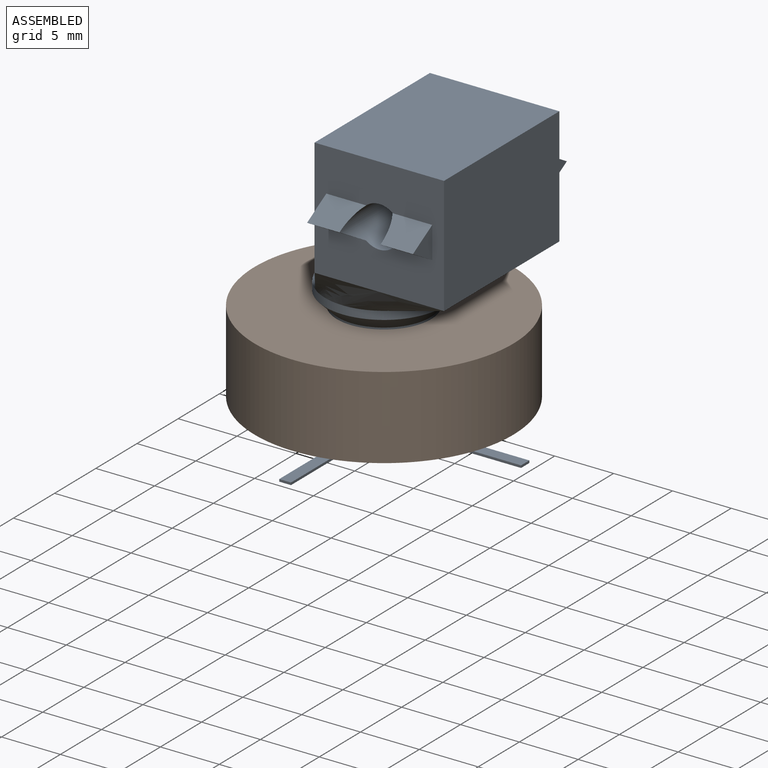
[diagram: assembled view]
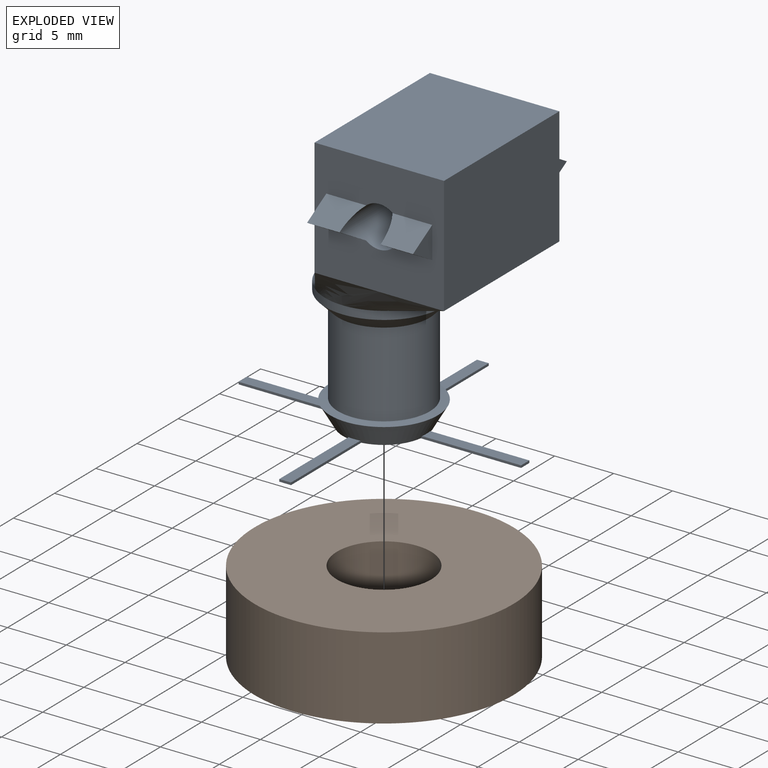
[diagram: exploded view]
GUIDED TOUR — FREECAD ASSEMBLY "robot-idler"

This assembly has 2 components, labeled P0..P1 below (a component is one placed body or linked part; the same part can appear more than once), held together by 0 modeled joints plus 1 derived contact edge. A joint is a constraint between two components; its type names the relative motion it leaves free:
  CONTACT — a derived adjacency edge — the two components touch in the source model (clearance under 2% of the assembly's diagonal); it is measured from the geometry, not a modeled constraint.
Axis/direction vectors are unit vectors and 'through' points are millimeter coordinates, both in the assembly's world frame.

MATES
  1. CONTACT "contact_0_1": P0 <-> P1, contact direction (0.000, 0.000, -1.000) through (2.23, 3.26, 9.15) mm (derived from contact, not a modeled constraint)

ASSEMBLY ORDER
  1. P0 — the base component [order verified]
  2. P1 [order verified]
Order-tag legend:
  [order verified] — this step's position reverses a verified removal order: the component was checked to insert without passing through the ones already placed.

Of the 2 components, 2 carry a construction recipe — the FreeCAD feature program (sketches with constraints, then the solid features that consume them) that regenerates the part from scratch, quoted from this document or from the linked companion document it references; the rest are supplied as boundary geometry only. The tour below walks the components in assembly order: each is shown spotlighted twice — in the assembled view, then in the exploded view, where a leader line traces a displaced component back to its assembled socket (components that stay in place when exploded have no leader line; saturated green if recipe-attached, orange if geometry-only; every other component desaturated gray) — followed by its recipe or geometry summary and the mates that hold it.
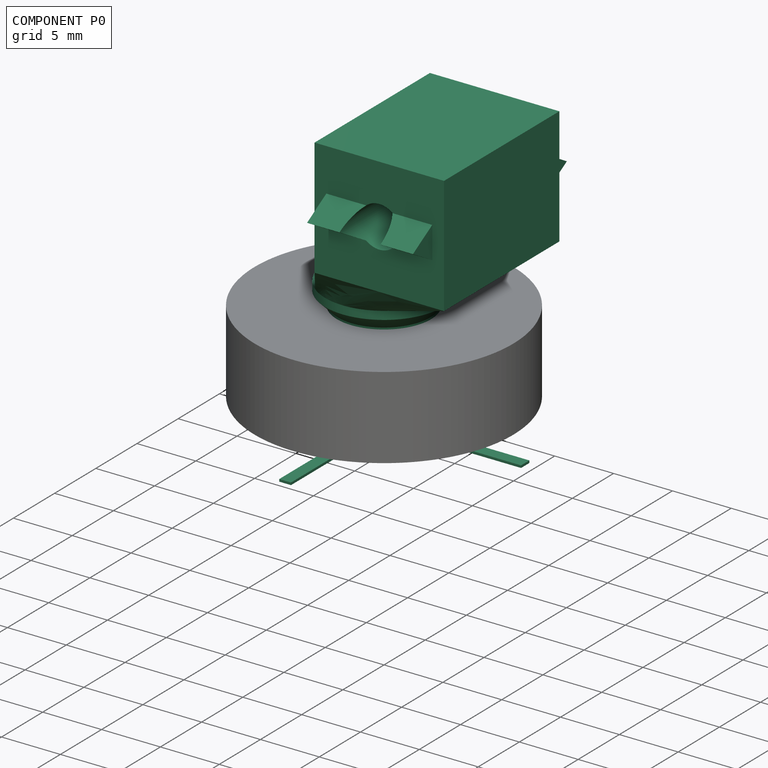
[diagram: component P0 — assembled]
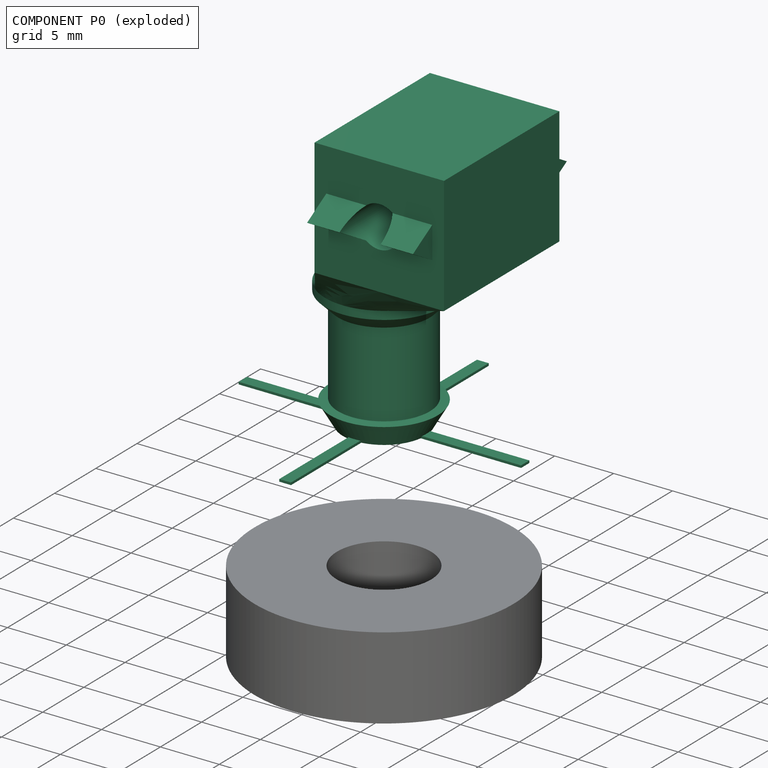
[diagram: component P0 — exploded]
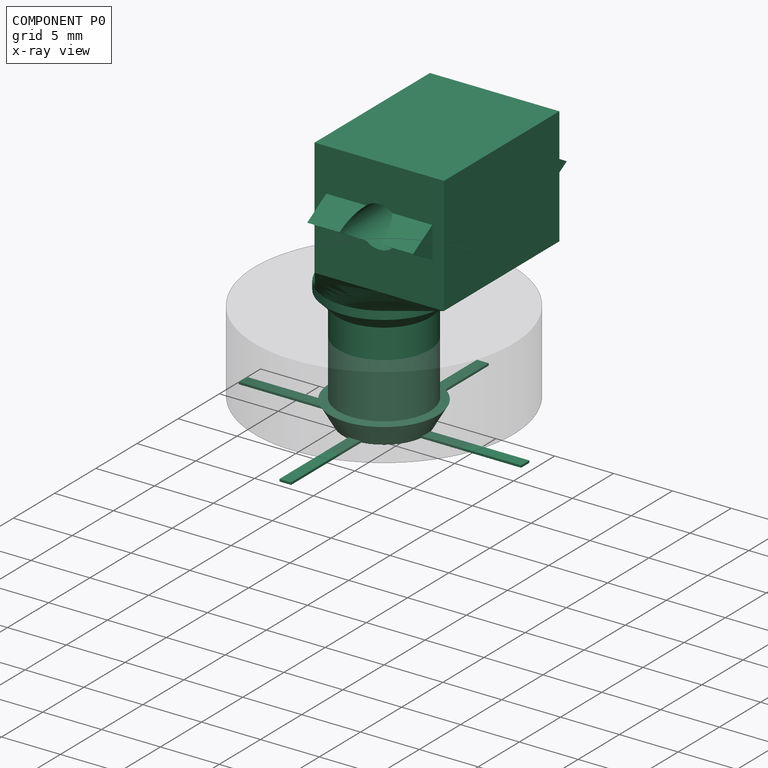
[diagram: component P0 — x-ray view]
COMPONENT P0 — recipe-attached ("inner", modeled in this document).
Held by: resting contact with P1 (derived edge).
Construction recipe (the document's own serialized feature program — sketch geometry with constraints, then the solid features built on it; lengths are millimeters unless a unit is written):

FEATURE [Sketcher::SketchObject] Sketch001
  FullyConstrained = true
  MapMode = 5
  Placement = pos=(0,0,0) rot=(0.57735,0.57735,0.57735;2.0944rad)
  Support = -> [YZ_Plane001]
  sketch-geometry (10):
    g0: LineSegment StartX=0 StartY=0 StartZ=0 EndX=3.5 EndY=0 EndZ=0
    g1: LineSegment StartX=3.5 StartY=0 StartZ=0 EndX=4.58497 EndY=1.87922 EndZ=0
    g2: LineSegment StartX=4.58497 StartY=1.87922 StartZ=0 EndX=3.9 EndY=2 EndZ=0
    g3: LineSegment StartX=3.9 StartY=2 StartZ=0 EndX=3.9 EndY=9.2 EndZ=0
    g4: LineSegment StartX=3.9 StartY=9.2 StartZ=0 EndX=5 EndY=10.3 EndZ=0
    g5: LineSegment StartX=5 StartY=10.3 StartZ=0 EndX=5 EndY=11 EndZ=0
    g6: LineSegment StartX=5 StartY=11 StartZ=0 EndX=0 EndY=11 EndZ=0
    g7: LineSegment StartX=0 StartY=11 StartZ=0 EndX=0 EndY=0 EndZ=0
    g8: LineSegment StartX=3.9 StartY=2 StartZ=0 EndX=0 EndY=2 EndZ=0
    g9: LineSegment StartX=3.9 StartY=9.2 StartZ=0 EndX=0 EndY=9.2 EndZ=0
  constraints (29):
    c: Coincident(g-1,g0)
    c: PointOnObject(g0,g-1)
    c: Coincident(g0,g1)
    c: Coincident(g1,g2)
    c: Coincident(g2,g3)
    c: Vertical(g3)
    c: Coincident(g3,g4)
    c: Coincident(g4,g5)
    c: Vertical(g5)
    c: Coincident(g5,g6)
    c: PointOnObject(g6,g-2)
    c: Horizontal(g6)
    c: Coincident(g6,g7)
    c: Coincident(g7,g0)
    c: DistanceX(g0,g0) = 3.5
    c: Angle(g1,g0) = 2.0944
    c: DistanceY(g0,g2) = 2
    c: DistanceX(g6,g3) = 3.9
    c: DistanceY(g3,g3) = 7.2
    c: Coincident(g8,g2)
    c: PointOnObject(g8,g7)
    c: Horizontal(g8)
    c: Angle(g8,g2) = 2.96706
    c: Coincident(g9,g3)
    c: PointOnObject(g9,g7)
    c: Horizontal(g9)
    c: Angle(g4,g9) = 2.35619
    c: DistanceX(g6,g6) = 5
    c: DistanceY(g0,g5) = 11
FEATURE [PartDesign::Revolution] Revolution001
  Angle = 360
  Axis = (-2e-16,3e-16,1)
  Base = (0,0,0)
  Placement = pos=(0,0,0) rot=(0.57735,0.57735,0.57735;2.0944rad)
  Profile = -> Sketch001
  ReferenceAxis = -> Sketch001 [V_Axis]
  Reversed = true
FEATURE [PartDesign::Plane] DatumPlane
  Length = 60
  MapMode = 5
  Placement = pos=(-4.8e-15,3.1e-15,11) rot=(0,0,-1;1.5708rad)
  ResizeMode = 0
  Support = -> [Revolution001]
  Width = 60
FEATURE [Sketcher::SketchObject] Sketch002
  FullyConstrained = true
  MapMode = 5
  Placement = pos=(-4.8e-15,3.1e-15,11) rot=(0,0,-1;1.5708rad)
  Support = -> [DatumPlane]
  sketch-geometry (1):
    g0: Circle CenterX=0 CenterY=0 CenterZ=0 NormalX=0 NormalY=0 NormalZ=1 AngleXU=0 Radius=5
  constraints (2):
    c: Coincident(g0,g-1)
    c: Diameter(g0) = 10
FEATURE [PartDesign::Plane] DatumPlane001
  AttachmentOffset = pos=(0,0,3) rot=(0,0,1;0rad)
  Length = 60
  MapMode = 5
  Placement = pos=(-6.2e-15,3.9e-15,14) rot=(0,0,-1;1.5708rad)
  ResizeMode = 0
  Support = -> [DatumPlane]
  Width = 60
FEATURE [Sketcher::SketchObject] Sketch003
  FullyConstrained = true
  MapMode = 5
  Placement = pos=(-6.2e-15,3.9e-15,14) rot=(0,0,-1;1.5708rad)
  Support = -> [DatumPlane001]
  sketch-geometry (4):
    g0: LineSegment StartX=-7 StartY=10 StartZ=0 EndX=7 EndY=10 EndZ=0
    g1: LineSegment StartX=7 StartY=10 StartZ=0 EndX=7 EndY=-1 EndZ=0
    g2: LineSegment StartX=7 StartY=-1 StartZ=0 EndX=-7 EndY=-1 EndZ=0
    g3: LineSegment StartX=-7 StartY=-1 StartZ=0 EndX=-7 EndY=10 EndZ=0
  constraints (11):
    c: Coincident(g0,g1)
    c: Coincident(g1,g2)
    c: Coincident(g2,g3)
    c: Coincident(g3,g0)
    c: Horizontal(g2)
    c: Vertical(g1)
    c: Symmetric(g0,g0,g-2)
    c: Vertical(g3)
    c: DistanceY(g-1,g0) = 10
    c: DistanceX(g0,g0) = 14
    c: DistanceY(g1,g-1) = 1
FEATURE [PartDesign::Plane] DatumPlane002
  AttachmentOffset = pos=(0,0,10) rot=(0,0,1;0rad)
  Length = 60
  MapMode = 5
  Placement = pos=(-1.06e-14,6.7e-15,24) rot=(0,0,-1;1.5708rad)
  ResizeMode = 0
  Support = -> [DatumPlane001]
  Width = 60
FEATURE [Sketcher::SketchObject] Sketch004
  FullyConstrained = true
  MapMode = 5
  Placement = pos=(-1.06e-14,6.7e-15,24) rot=(0,0,-1;1.5708rad)
  Support = -> [DatumPlane002]
  sketch-geometry (4):
    g0: LineSegment StartX=-7 StartY=10 StartZ=0 EndX=7 EndY=10 EndZ=0
    g1: LineSegment StartX=7 StartY=10 StartZ=0 EndX=7 EndY=-1 EndZ=0
    g2: LineSegment StartX=7 StartY=-1 StartZ=0 EndX=-7 EndY=-1 EndZ=0
    g3: LineSegment StartX=-7 StartY=-1 StartZ=0 EndX=-7 EndY=10 EndZ=0
  constraints (11):
    c: Coincident(g0,g1)
    c: Coincident(g1,g2)
    c: Coincident(g2,g3)
    c: Coincident(g3,g0)
    c: Horizontal(g2)
    c: Vertical(g1)
    c: Vertical(g3)
    c: DistanceX(g0,g0) = 14
    c: Symmetric(g0,g0,g-2)
    c: DistanceY(g-1,g0) = 10
    c: DistanceY(g1,g-1) = 1
FEATURE [PartDesign::AdditiveLoft] AdditiveLoft
  BaseFeature = -> Revolution001
  Closed = false
  Placement = pos=(0,0,0) rot=(0.57735,0.57735,0.57735;2.0944rad)
  Profile = -> Sketch002
  Ruled = true
  Sections = -> [Sketch003,Sketch004]
FEATURE [Sketcher::SketchObject] Sketch005
  FullyConstrained = true
  MapMode = 5
  Placement = pos=(0,0,0) rot=(0.57735,0.57735,0.57735;2.0944rad)
  Support = -> [YZ_Plane001]
  sketch-geometry (8):
    g0: LineSegment StartX=-7 StartY=20.35 StartZ=0 EndX=-9.33827 EndY=19 EndZ=0
    g1: LineSegment StartX=-9.33827 StartY=19 StartZ=0 EndX=-7 EndY=17.65 EndZ=0
    g2: LineSegment StartX=-7 StartY=17.65 StartZ=0 EndX=7 EndY=17.65 EndZ=0
    g3: LineSegment StartX=7 StartY=17.65 StartZ=0 EndX=9.33827 EndY=19 EndZ=0
    g4: LineSegment StartX=9.33827 StartY=19 StartZ=0 EndX=7 EndY=20.35 EndZ=0
    g5: LineSegment StartX=7 StartY=20.35 StartZ=0 EndX=-7 EndY=20.35 EndZ=0
    g6: LineSegment StartX=-7 StartY=20.35 StartZ=0 EndX=-7 EndY=17.65 EndZ=0
    g7: LineSegment StartX=7 StartY=20.35 StartZ=0 EndX=7 EndY=17.65 EndZ=0
  constraints (21):
    c: Coincident(g0,g1)
    c: Coincident(g1,g2)
    c: Horizontal(g2)
    c: Coincident(g2,g3)
    c: Coincident(g3,g4)
    c: Coincident(g4,g5)
    c: Coincident(g5,g0)
    c: Coincident(g6,g0)
    c: Coincident(g6,g1)
    c: Vertical(g6)
    c: Coincident(g7,g4)
    c: Coincident(g7,g2)
    c: Vertical(g7)
    c: Equal(g0,g1)
    c: Equal(g4,g3)
    c: Equal(g1,g3)
    c: Symmetric(g0,g4,g-2)
    c: Equal(g1,g6)
    c: DistanceX(g5,g5) = 14
    c: DistanceY(g2,g4) = 2.7
    c: DistanceY(g-1,g3) = 19
FEATURE [PartDesign::Pad] Pad
  BaseFeature = -> AdditiveLoft
  Direction = (1,-2e-16,3e-16)
  Length = 9
  Length2 = 10
  Placement = pos=(0,0,0) rot=(0.57735,0.57735,0.57735;2.0944rad)
  Profile = -> Sketch005
  ReferenceAxis = -> Sketch005 [N_Axis]
  Type = 0
FEATURE [Sketcher::SketchObject] Sketch006
  FullyConstrained = true
  MapMode = 5
  Placement = pos=(0,0,0) rot=(1,0,0;1.5708rad)
  Support = -> [XZ_Plane001]
  sketch-geometry (1):
    g0: Circle CenterX=4.5 CenterY=19 CenterZ=0 NormalX=0 NormalY=0 NormalZ=1 AngleXU=0 Radius=1.75
  constraints (3):
    c: Diameter(g0) = 3.5
    c: DistanceY(g-1,g0) = 19
    c: DistanceX(g-1,g0) = 4.5
FEATURE [PartDesign::Pocket] Pocket
  BaseFeature = -> Pad
  Direction = (0,1,2e-16)
  Length = 5
  Length2 = 5
  Midplane = true
  Placement = pos=(0,0,0) rot=(0.57735,0.57735,0.57735;2.0944rad)
  Profile = -> Sketch006
  ReferenceAxis = -> Sketch006 [N_Axis]
  Type = 1
FEATURE [Sketcher::SketchObject] Sketch007
  FullyConstrained = true
  MapMode = 5
  Support = -> [XY_Plane001]
  sketch-geometry (21):
    g0: LineSegment StartX=12 StartY=0.5 StartZ=0 EndX=3 EndY=0.5 EndZ=0
    g1: LineSegment StartX=3 StartY=0.5 StartZ=0 EndX=3 EndY=-0.5 EndZ=0
    g2: LineSegment StartX=3 StartY=-0.5 StartZ=0 EndX=12 EndY=-0.5 EndZ=0
    g3: LineSegment StartX=12 StartY=-0.5 StartZ=0 EndX=12 EndY=0.5 EndZ=0
    g4: LineSegment StartX=0.5 StartY=12 StartZ=0 EndX=-0.5 EndY=12 EndZ=0
    g5: LineSegment StartX=-0.5 StartY=12 StartZ=0 EndX=-0.5 EndY=3 EndZ=0
    g6: LineSegment StartX=-0.5 StartY=3 StartZ=0 EndX=0.5 EndY=3 EndZ=0
    g7: LineSegment StartX=0.5 StartY=3 StartZ=0 EndX=0.5 EndY=12 EndZ=0
    g8: LineSegment StartX=-3 StartY=0.5 StartZ=0 EndX=-12 EndY=0.5 EndZ=0
    g9: LineSegment StartX=-12 StartY=0.5 StartZ=0 EndX=-12 EndY=-0.5 EndZ=0
    g10: LineSegment StartX=-12 StartY=-0.5 StartZ=0 EndX=-3 EndY=-0.5 EndZ=0
    g11: LineSegment StartX=-3 StartY=-0.5 StartZ=0 EndX=-3 EndY=0.5 EndZ=0
    g12: LineSegment StartX=0.5 StartY=-3 StartZ=0 EndX=-0.5 EndY=-3 EndZ=0
    g13: LineSegment StartX=-0.5 StartY=-3 StartZ=0 EndX=-0.5 EndY=-12 EndZ=0
    g14: LineSegment StartX=-0.5 StartY=-12 StartZ=0 EndX=0.5 EndY=-12 EndZ=0
    g15: LineSegment StartX=0.5 StartY=-12 StartZ=0 EndX=0.5 EndY=-3 EndZ=0
    g16: Circle CenterX=0 CenterY=0 CenterZ=0 NormalX=0 NormalY=0 NormalZ=1 AngleXU=0 Radius=3
    g17: LineSegment StartX=3 StartY=0.5 StartZ=0 EndX=0.5 EndY=3 EndZ=0
    g18: LineSegment StartX=-0.5 StartY=3 StartZ=0 EndX=-3 EndY=0.5 EndZ=0
    g19: LineSegment StartX=-3 StartY=-0.5 StartZ=0 EndX=-0.5 EndY=-3 EndZ=0
    g20: LineSegment StartX=0.5 StartY=-3 StartZ=0 EndX=3 EndY=-0.5 EndZ=0
  constraints (54):
    c: Coincident(g0,g1)
    c: Coincident(g1,g2)
    c: Coincident(g2,g3)
    c: Coincident(g3,g0)
    c: Horizontal(g0)
    c: Horizontal(g2)
    c: Vertical(g3)
    c: Coincident(g4,g5)
    c: Coincident(g5,g6)
    c: Coincident(g6,g7)
    c: Coincident(g7,g4)
    c: Horizontal(g4)
    c: Vertical(g5)
    c: Vertical(g7)
    c: Coincident(g8,g9)
    c: Coincident(g9,g10)
    c: Coincident(g10,g11)
    c: Coincident(g11,g8)
    c: Horizontal(g8)
    c: Horizontal(g10)
    c: Vertical(g9)
    c: Coincident(g12,g13)
    c: Coincident(g13,g14)
    c: Coincident(g14,g15)
    c: Coincident(g15,g12)
    c: Horizontal(g14)
    c: Vertical(g13)
    c: Vertical(g15)
    c: Symmetric(g8,g10,g-1)
    c: Symmetric(g0,g1,g-1)
    c: Symmetric(g6,g5,g-2)
    c: Symmetric(g12,g12,g-2)
    c: Equal(g1,g11)
    c: Equal(g11,g6)
    c: Equal(g6,g12)
    c: DistanceY(g9,g9) = 1
    c: Coincident(g16,g-1)
    c: Tangent(g16,g6)
    c: Tangent(g16,g11)
    c: Tangent(g16,g12)
    c: Tangent(g1,g16)
    c: Diameter(g16) = 6
    c: Equal(g10,g5)
    c: Equal(g5,g2)
    c: Equal(g2,g13)
    c: DistanceX(g10,g10) = 9
    c: Coincident(g17,g0)
    c: Coincident(g17,g7)
    c: Coincident(g18,g5)
    c: Coincident(g18,g8)
    c: Coincident(g19,g10)
    c: Coincident(g19,g13)
    c: Coincident(g20,g15)
    c: Coincident(g20,g2)
FEATURE [PartDesign::Pad] Pad001
  BaseFeature = -> Pocket
  Direction = (0,0,1)
  Length = 0.2
  Length2 = 10
  Placement = pos=(0,0,0) rot=(0.57735,0.57735,0.57735;2.0944rad)
  Profile = -> Sketch007
  ReferenceAxis = -> Sketch007 [N_Axis]
  Type = 0
FEATURE [PartDesign::Body] Body001  label="inner"
  Group = -> [Sketch001,Revolution001,DatumPlane,Sketch002,DatumPlane001,Sketch003,DatumPlane002,Sketch004,AdditiveLoft,Sketch005,Pad,Sketch006,Pocket,Sketch007,Pad001]
  Origin = -> Origin001
  Tip = -> Pad001
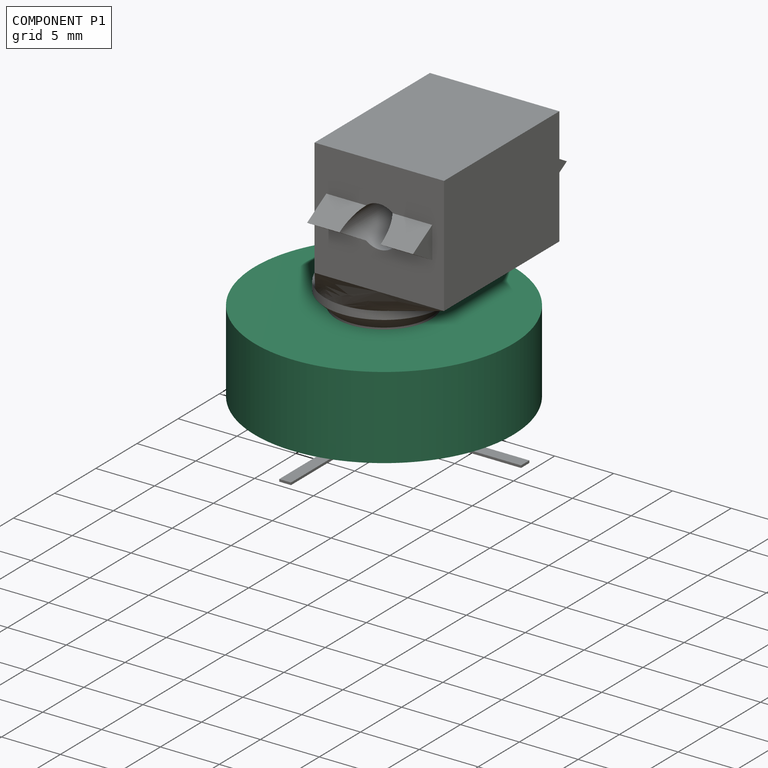
[diagram: component P1 — assembled]
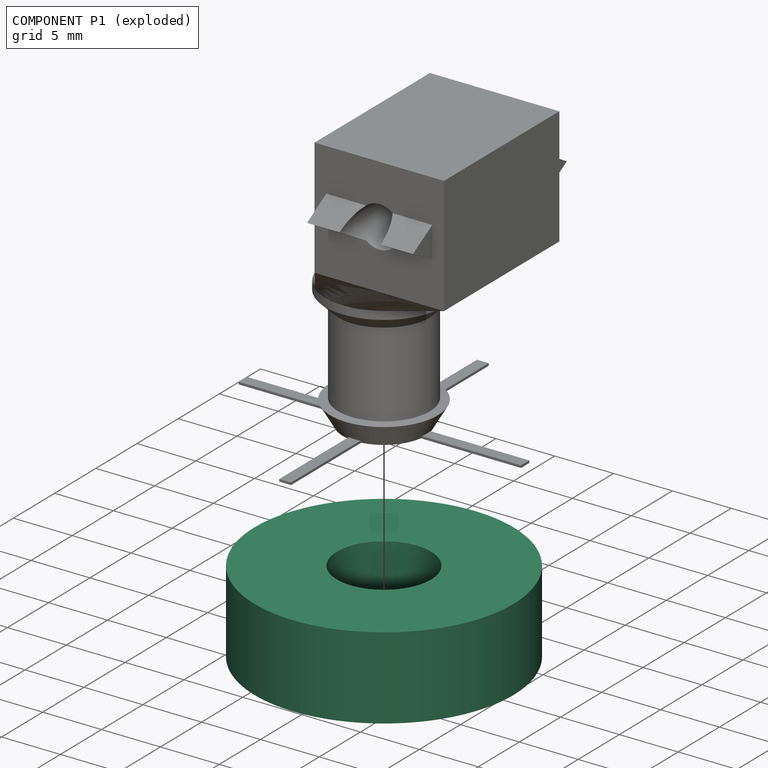
[diagram: component P1 — exploded]
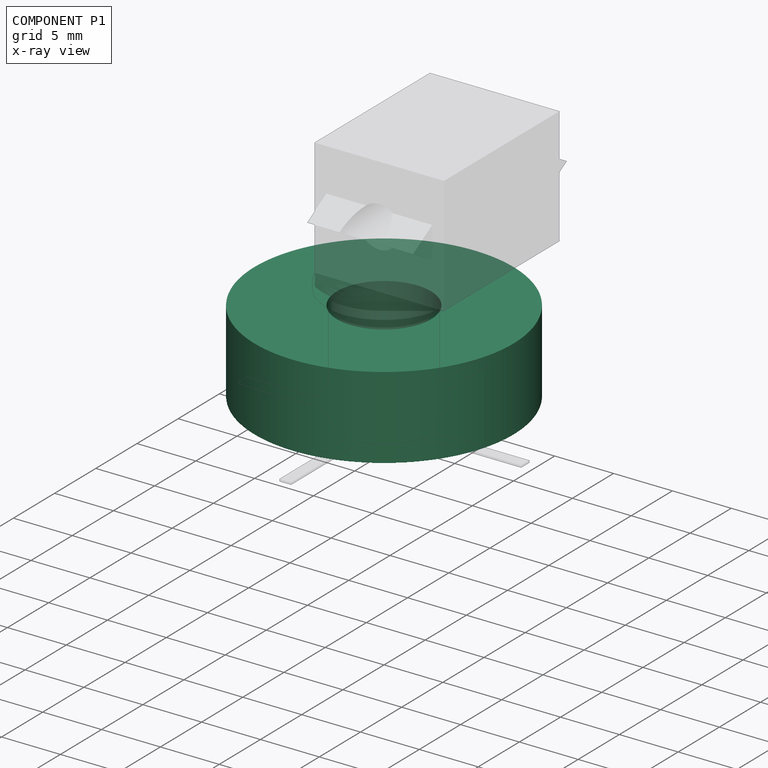
[diagram: component P1 — x-ray view]
COMPONENT P1 — recipe-attached ("bearing", modeled in this document).
Held by: resting contact with P0 (derived edge).
Construction recipe (the document's own serialized feature program — sketch geometry with constraints, then the solid features built on it; lengths are millimeters unless a unit is written):

FEATURE [Sketcher::SketchObject] Sketch
  FullyConstrained = true
  MapMode = 5
  Placement = pos=(0,0,0) rot=(0.57735,0.57735,0.57735;2.0944rad)
  Support = -> [YZ_Plane]
  sketch-geometry (10):
    g0: LineSegment StartX=9.6 StartY=11.2 StartZ=0 EndX=9.6 EndY=10.7 EndZ=0
    g1: LineSegment StartX=9.6 StartY=10.7 StartZ=0 EndX=11.1 EndY=9.2 EndZ=0
    g2: LineSegment StartX=11.1 StartY=9.2 StartZ=0 EndX=11.1 EndY=2 EndZ=0
    g3: LineSegment StartX=11.1 StartY=2 StartZ=0 EndX=9.6 EndY=1.73551 EndZ=0
    g4: LineSegment StartX=9.6 StartY=1.73551 StartZ=0 EndX=10.602 EndY=0 EndZ=0
    g5: LineSegment StartX=10.602 StartY=0 StartZ=0 EndX=17 EndY=0 EndZ=0
    g6: LineSegment StartX=17 StartY=0 StartZ=0 EndX=17 EndY=11.2 EndZ=0
    g7: LineSegment StartX=17 StartY=11.2 StartZ=0 EndX=9.6 EndY=11.2 EndZ=0
    g8: LineSegment StartX=9.6 StartY=1.73551 StartZ=0 EndX=17 EndY=1.73551 EndZ=0
    g9: LineSegment StartX=11.1 StartY=9.2 StartZ=0 EndX=17 EndY=9.2 EndZ=0
  constraints (31):
    c: Vertical(g0)
    c: Coincident(g0,g1)
    c: Coincident(g1,g2)
    c: Vertical(g2)
    c: Coincident(g2,g3)
    c: Coincident(g3,g4)
    c: PointOnObject(g4,g-1)
    c: Coincident(g4,g5)
    c: PointOnObject(g5,g-1)
    c: Coincident(g5,g6)
    c: Vertical(g6)
    c: Coincident(g6,g7)
    c: Coincident(g7,g0)
    c: Horizontal(g7)
    c: DistanceX(g-1,g5) = 17
    c: DistanceY(g5,g2) = 2
    c: Coincident(g8,g3)
    c: PointOnObject(g8,g6)
    c: Horizontal(g8)
    c: Angle(g8,g3) = 0.174533
    c: DistanceX(g-1,g2) = 11.1
    c: DistanceY(g2,g2) = 7.2
    c: DistanceX(g0,g1) = 1.5
    c: Coincident(g9,g1)
    c: PointOnObject(g9,g6)
    c: Horizontal(g9)
    c: Angle(g1,g9) = 3.92699
    c: DistanceY(g1,g6) = 2
    c: DistanceX(g3,g2) = 1.5
    c: Angle(g5,g4) = 2.0944
    c: DistanceY(g6,g6) = 11.2
FEATURE [PartDesign::Revolution] Revolution
  Angle = 360
  Axis = (-2e-16,3e-16,1)
  Base = (0,0,0)
  Placement = pos=(0,0,0) rot=(0.57735,0.57735,0.57735;2.0944rad)
  Profile = -> Sketch
  ReferenceAxis = -> Sketch [V_Axis]
  Reversed = true
FEATURE [PartDesign::Chamfer] Chamfer
  Angle = 45
  Base = -> Revolution [Face6]
  BaseFeature = -> Revolution
  ChamferType = 0
  FlipDirection = false
  Placement = pos=(0,0,0) rot=(0.57735,0.57735,0.57735;2.0944rad)
  Size = 0.5
  Size2 = 1
  SupportTransform = false
  UseAllEdges = false
FEATURE [PartDesign::Body] Body  label="outer"
  Group = -> [Sketch,Revolution,Chamfer]
  Origin = -> Origin
  Tip = -> Chamfer
PROVENANCE & LICENSES
Assembly and component geometry: a FreeCAD (.FCStd) document from a public repository crawl; components, placements and joints were extracted with FreeCAD and each solid tessellated.
Construction recipes: the document's own serialized feature recipes (and, for linked parts, the recipes of companion documents from the same project).
License: gpl-3.0.
Joints: native FreeCAD joints and A2plus constraints are mapped to standard mate types; edges marked 'derived from contact' connect touching components and are measured from the geometry, not modeled.
Verification: 2 of this assembly's 2 components carry a construction recipe (2 from this document itself); the rest are geometry-only. Every component's tessellation passed the extraction mesh gates (mesh-volume checksum against the B-rep where available, bounding-box inflation <= 2%).
Renders: orthographic iso camera (az 35 / el 25); the floor grid conveys scale (grid pitch printed in each image; no ruler). In the exploded view each component is displaced by its stored offset vector: the offsets alone carry the explosion direction (mate normal/axis signs are not orientation cues and do not encode it), and separation distances are assigned per mate-chain, not proportionally to assembly-order depth.
